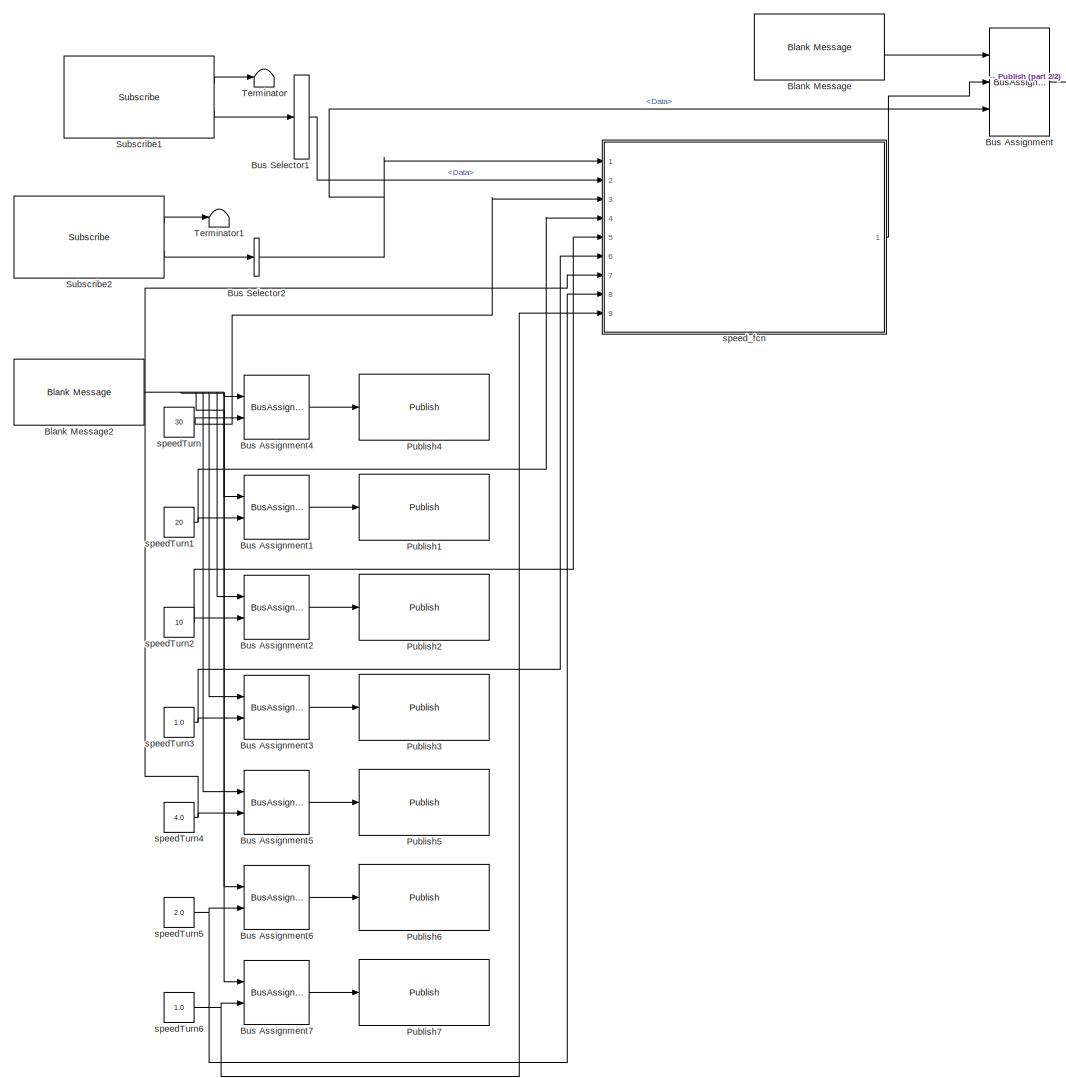
[diagram: root canvas - part 1/2, most of the canvas]
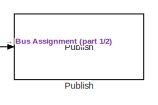
[diagram: root canvas - part 2/2, top right region]
MODEL slx_d945eaeb0a13
KIND model
CONFIG AbsTol = auto
CONFIG EnableMultiTasking = off
CONFIG FixedStep = auto
CONFIG MaxStep = auto
CONFIG MinStep = auto
CONFIG RelTol = 1e-3
CONFIG SampleTimeConstraint = Unconstrained
CONFIG Solver = FixedStepAuto
CONFIG SolverName = FixedStepAuto
CONFIG StartTime = 0.0
CONFIG StopTime = inf
BLOCK [Reference] Blank Message  REF=robotlib/Blank Message
  Ports = [0, 1]
  SourceBlock = robotlib/Blank Message
  SourceLibraryInfo = This block requires Robotics System Toolbox
  SourceType = ROS Blank Message
BLOCK [Reference] Blank Message2  REF=robotlib/Blank Message
  Ports = [0, 1]
  SourceBlock = robotlib/Blank Message
  SourceLibraryInfo = This block requires Robotics System Toolbox
  SourceType = ROS Blank Message
BLOCK [BusAssignment] Bus Assignment
  AssignedSignals = Linear.X,Angular.Z
  Ports = [3, 1]
BLOCK [BusAssignment] Bus Assignment1
  AssignedSignals = Data
  Ports = [2, 1]
BLOCK [BusAssignment] Bus Assignment2
  AssignedSignals = Data
  Ports = [2, 1]
BLOCK [BusAssignment] Bus Assignment3
  AssignedSignals = Data
  Ports = [2, 1]
BLOCK [BusAssignment] Bus Assignment4
  AssignedSignals = Data
  Ports = [2, 1]
BLOCK [BusAssignment] Bus Assignment5
  AssignedSignals = Data
  Ports = [2, 1]
BLOCK [BusAssignment] Bus Assignment6
  AssignedSignals = Data
  Ports = [2, 1]
BLOCK [BusAssignment] Bus Assignment7
  AssignedSignals = Data
  Ports = [2, 1]
BLOCK [BusSelector] Bus Selector1
  OutputSignals = Data
  Ports = [1, 1]
BLOCK [BusSelector] Bus Selector2
  OutputSignals = Data
  Ports = [1, 1]
BLOCK [Reference] Publish  REF=robotlib/Publish
  Ports = [1]
  SourceBlock = robotlib/Publish
  SourceLibraryInfo = This block requires Robotics System Toolbox
  SourceType = ROS Publish
BLOCK [Reference] Publish1  REF=robotlib/Publish
  Ports = [1]
  SourceBlock = robotlib/Publish
  SourceLibraryInfo = This block requires Robotics System Toolbox
  SourceType = ROS Publish
BLOCK [Reference] Publish2  REF=robotlib/Publish
  Ports = [1]
  SourceBlock = robotlib/Publish
  SourceLibraryInfo = This block requires Robotics System Toolbox
  SourceType = ROS Publish
BLOCK [Reference] Publish3  REF=robotlib/Publish
  Ports = [1]
  SourceBlock = robotlib/Publish
  SourceLibraryInfo = This block requires Robotics System Toolbox
  SourceType = ROS Publish
BLOCK [Reference] Publish4  REF=robotlib/Publish
  Ports = [1]
  SourceBlock = robotlib/Publish
  SourceLibraryInfo = This block requires Robotics System Toolbox
  SourceType = ROS Publish
BLOCK [Reference] Publish5  REF=robotlib/Publish
  Ports = [1]
  SourceBlock = robotlib/Publish
  SourceLibraryInfo = This block requires Robotics System Toolbox
  SourceType = ROS Publish
BLOCK [Reference] Publish6  REF=robotlib/Publish
  Ports = [1]
  SourceBlock = robotlib/Publish
  SourceLibraryInfo = This block requires Robotics System Toolbox
  SourceType = ROS Publish
BLOCK [Reference] Publish7  REF=robotlib/Publish
  Ports = [1]
  SourceBlock = robotlib/Publish
  SourceLibraryInfo = This block requires Robotics System Toolbox
  SourceType = ROS Publish
BLOCK [Reference] Subscribe1  REF=robotlib/Subscribe
  Ports = [0, 2]
  SourceBlock = robotlib/Subscribe
  SourceLibraryInfo = This block requires Robotics System Toolbox
  SourceType = ROS Subscribe
BLOCK [Reference] Subscribe2  REF=robotlib/Subscribe
  Ports = [0, 2]
  SourceBlock = robotlib/Subscribe
  SourceLibraryInfo = This block requires Robotics System Toolbox
  SourceType = ROS Subscribe
BLOCK [Terminator] Terminator
BLOCK [Terminator] Terminator1
BLOCK [Constant] speedTurn
  OutDataTypeStr = double
  Value = 30
BLOCK [Constant] speedTurn1
  OutDataTypeStr = double
  Value = 20
BLOCK [Constant] speedTurn2
  OutDataTypeStr = double
  Value = 10
BLOCK [Constant] speedTurn3
  OutDataTypeStr = double
  Value = 1.0
BLOCK [Constant] speedTurn4
  OutDataTypeStr = double
  Value = 4.0
BLOCK [Constant] speedTurn5
  OutDataTypeStr = double
  Value = 2.0
BLOCK [Constant] speedTurn6
  OutDataTypeStr = double
  Value = 1.0
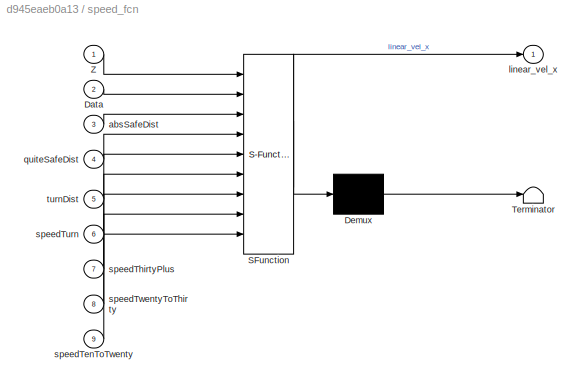
BLOCK [SubSystem] speed_fcn
  ErrorFcn = Stateflow.Translate.translate
  PermitHierarchicalResolution = ExplicitOnly
  Ports = [9, 1]
  RequestExecContextInheritance = off
  SFBlockType = MATLAB Function
  TreatAsAtomicUnit = on
  Variant = off
BLOCK [Demux] speed_fcn/ Demux 
  Outputs = 1
  Ports = [1, 1]
BLOCK [S-Function] speed_fcn/ SFunction 
  EnableBusSupport = on
  FunctionName = sf_sfun
  PortCounts = [9 2]
  Ports = [9, 2]
  SFcnIsStateOwnerBlock = off
  SFunctionDeploymentMode = off
  Tag = Stateflow S-Function speedController 2
BLOCK [Terminator] speed_fcn/ Terminator 
BLOCK [Inport] speed_fcn/Data
  IconDisplay = Port number
  Port = 2
BLOCK [Inport] speed_fcn/Z
  IconDisplay = Port number
BLOCK [Inport] speed_fcn/absSafeDist
  IconDisplay = Port number
  Port = 3
BLOCK [Outport] speed_fcn/linear_vel_x
  IconDisplay = Port number
BLOCK [Inport] speed_fcn/quiteSafeDist
  IconDisplay = Port number
  Port = 4
BLOCK [Inport] speed_fcn/speedTenToTwenty
  IconDisplay = Port number
  Port = 9
BLOCK [Inport] speed_fcn/speedThirtyPlus
  IconDisplay = Port number
  Port = 7
BLOCK [Inport] speed_fcn/speedTurn
  IconDisplay = Port number
  Port = 6
BLOCK [Inport] speed_fcn/speedTwentyToThirty
  IconDisplay = Port number
  Port = 8
BLOCK [Inport] speed_fcn/turnDist
  IconDisplay = Port number
  Port = 5
NET Blank Message2:1 -> Bus Assignment1:1, Bus Assignment2:1, Bus Assignment3:1, Bus Assignment4:1, Bus Assignment5:1, Bus Assignment6:1, Bus Assignment7:1
LINE Blank Message:1 -> Bus Assignment:1
LINE Bus Assignment1:1 -> Publish1:1
LINE Bus Assignment2:1 -> Publish2:1
LINE Bus Assignment3:1 -> Publish3:1
LINE Bus Assignment4:1 -> Publish4:1
LINE Bus Assignment5:1 -> Publish5:1
LINE Bus Assignment6:1 -> Publish6:1
LINE Bus Assignment7:1 -> Publish7:1
LINE Bus Assignment:1 -> Publish:1
LINE Bus Selector1:1 -> speed_fcn:2
NET Bus Selector2:1 -> Bus Assignment:3, speed_fcn:1
LINE Subscribe1:1 -> Terminator:1
LINE Subscribe1:2 -> Bus Selector1:1
LINE Subscribe2:1 -> Terminator1:1
LINE Subscribe2:2 -> Bus Selector2:1
NET speedTurn1:1 -> Bus Assignment1:2, speed_fcn:4
NET speedTurn2:1 -> Bus Assignment2:2, speed_fcn:5
NET speedTurn3:1 -> Bus Assignment3:2, speed_fcn:6
NET speedTurn4:1 -> Bus Assignment5:2, speed_fcn:7
NET speedTurn5:1 -> Bus Assignment6:2, speed_fcn:8
NET speedTurn6:1 -> Bus Assignment7:2, speed_fcn:9
NET speedTurn:1 -> Bus Assignment4:2, speed_fcn:3
LINE speed_fcn:1 -> Bus Assignment:2
note: NET lines group one-source signal fan-out (src -> all destinations, sorted); 1:1 wires keep LINE
CHART speed_fcn states=1 transitions=1
  STATE_LABEL 'eML_blk_kernel()'
  STATE_LABEL 'SCRIPT:\nfunction linear_vel_x = fcn(Z, Data,absSafeDist,quiteSafeDist,turnDist...\n    ,speedTurn,speedThirtyPlus,speedTwentyToThirty,speedTenToTwenty)\nif(Z ~= 0)\n    linear_vel_x = speedTurn;\nelse\n    if(Data >= absSafeDist)\n        linear_vel_x = speedThirtyPlus;\n    elseif(Data >= quiteSafeDist && Data < absSafeDist)\n        linear_vel_x = speedTwentyToThirty;\n    elseif(Data >= turnDist && Data...<+120ch>'
